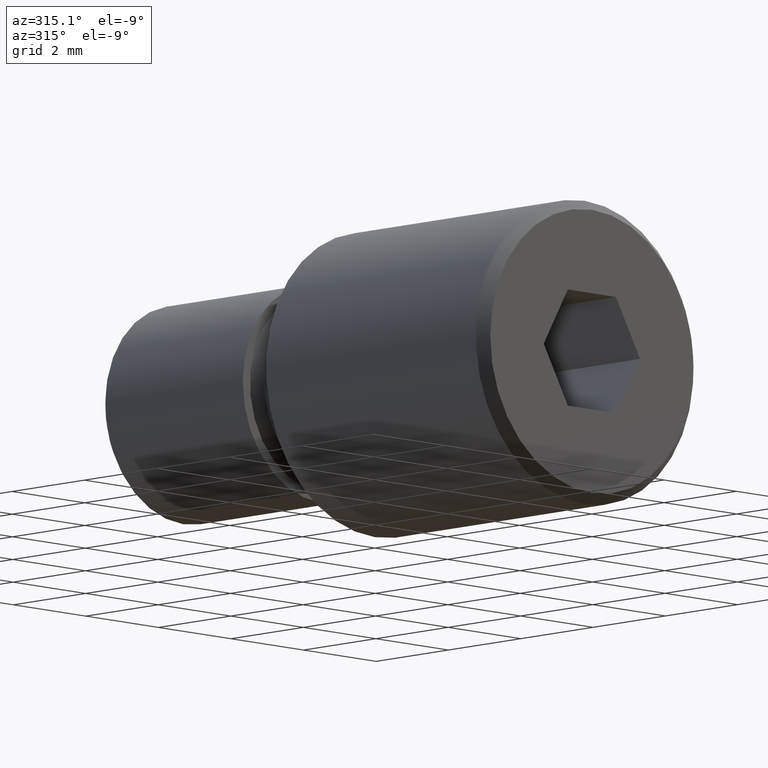
[diagram: clean part render]
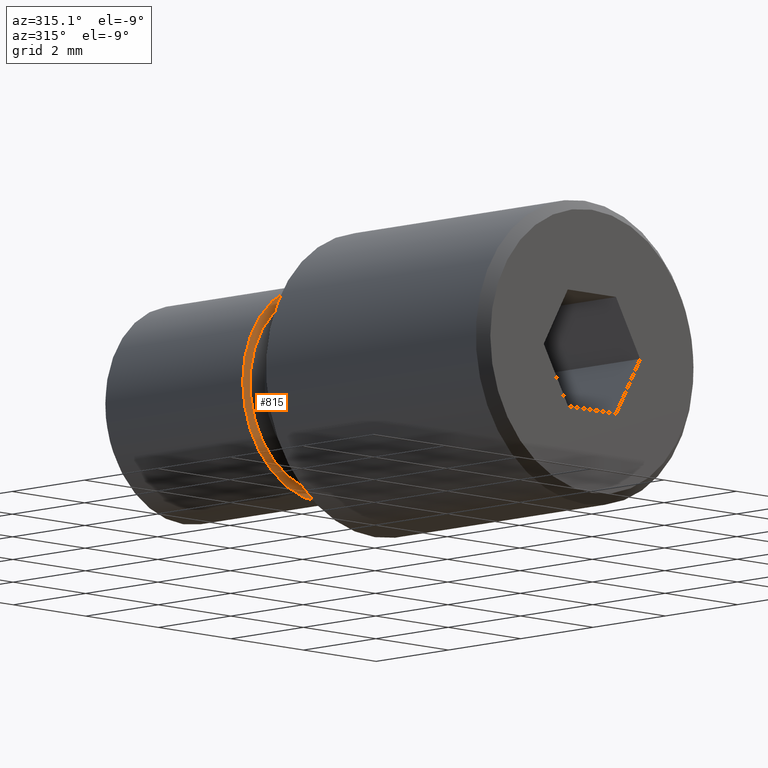
[diagram: same view with one face highlighted and labeled with its STEP entity id]
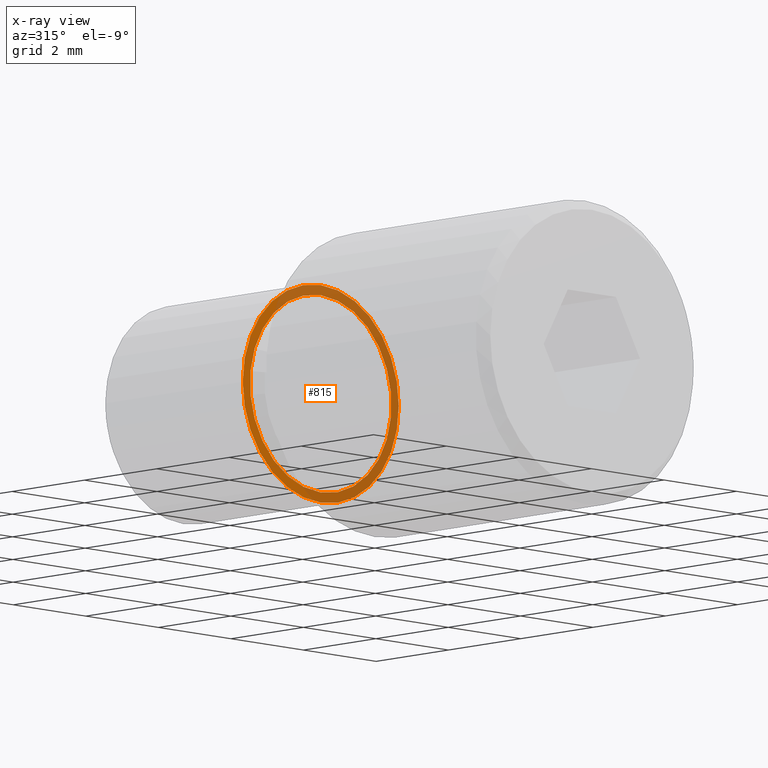
[diagram: x-ray of the same camera — body ghosted, the highlighted face saturated]
A machine part, auxiliary view. The second image highlights one B-rep face of the part: STEP entity #815.
The next image is the same camera in x-ray: the body ghosted, the highlighted face saturated — about 63% of this face is hidden behind the body in this view.
In plain terms, the highlighted planar face has unit normal (0, 1, 0).
Its self-contained STEP definition (entity closure, byte-faithful):
#14 = VERTEX_POINT ( 'NONE', #685 ) ;
#71 = CIRCLE ( 'NONE', #387, 1.950000000000000400 ) ;
#96 = ORIENTED_EDGE ( 'NONE', *, *, #297, .F. ) ;
#126 = DIRECTION ( 'NONE',  ( 0.0000000000000000000, 0.0000000000000000000, 1.000000000000000000 ) ) ;
#130 = CARTESIAN_POINT ( 'NONE',  ( 0.0000000000000000000, 7.500000000000000000, 0.0000000000000000000 ) ) ;
#134 = AXIS2_PLACEMENT_3D ( 'NONE', #635, #933, #351 ) ;
#135 = ORIENTED_EDGE ( 'NONE', *, *, #254, .T. ) ;
#142 = CARTESIAN_POINT ( 'NONE',  ( 2.388061258337339100E-016, 7.500000000000000000, -1.950000000000000400 ) ) ;
#173 = CARTESIAN_POINT ( 'NONE',  ( 0.0000000000000000000, 7.500000000000000000, 1.950000000000000400 ) ) ;
#254 = EDGE_CURVE ( 'NONE', #669, #862, #71, .T. ) ;
#276 = CARTESIAN_POINT ( 'NONE',  ( 0.0000000000000000000, 7.500000000000000000, 0.0000000000000000000 ) ) ;
#280 = DIRECTION ( 'NONE',  ( 0.0000000000000000000, 0.0000000000000000000, 1.000000000000000000 ) ) ;
#284 = DIRECTION ( 'NONE',  ( 0.0000000000000000000, 1.000000000000000000, 0.0000000000000000000 ) ) ;
#290 = CARTESIAN_POINT ( 'NONE',  ( 0.0000000000000000000, 7.500000000000000000, 0.0000000000000000000 ) ) ;
#297 = EDGE_CURVE ( 'NONE', #14, #851, #684, .T. ) ;
#305 = EDGE_CURVE ( 'NONE', #851, #14, #774, .T. ) ;
#351 = DIRECTION ( 'NONE',  ( 0.0000000000000000000, 0.0000000000000000000, 1.000000000000000000 ) ) ;
#354 = EDGE_CURVE ( 'NONE', #862, #669, #654, .T. ) ;
#359 = DIRECTION ( 'NONE',  ( 0.0000000000000000000, 0.0000000000000000000, 1.000000000000000000 ) ) ;
#368 = DIRECTION ( 'NONE',  ( 0.0000000000000000000, 1.000000000000000000, 0.0000000000000000000 ) ) ;
#387 = AXIS2_PLACEMENT_3D ( 'NONE', #489, #417, #126 ) ;
#417 = DIRECTION ( 'NONE',  ( 0.0000000000000000000, 1.000000000000000000, 0.0000000000000000000 ) ) ;
#425 = DIRECTION ( 'NONE',  ( 0.0000000000000000000, 1.000000000000000000, 0.0000000000000000000 ) ) ;
#430 = AXIS2_PLACEMENT_3D ( 'NONE', #130, #284, #717 ) ;
#433 = FACE_OUTER_BOUND ( 'NONE', #806, .T. ) ;
#441 = AXIS2_PLACEMENT_3D ( 'NONE', #276, #425, #280 ) ;
#450 = ORIENTED_EDGE ( 'NONE', *, *, #354, .T. ) ;
#468 = ORIENTED_EDGE ( 'NONE', *, *, #305, .F. ) ;
#489 = CARTESIAN_POINT ( 'NONE',  ( 0.0000000000000000000, 7.500000000000000000, 0.0000000000000000000 ) ) ;
#569 = CARTESIAN_POINT ( 'NONE',  ( 2.632990618166809200E-016, 7.500000000000000000, 2.149999999999999900 ) ) ;
#635 = CARTESIAN_POINT ( 'NONE',  ( 0.0000000000000000000, 7.500000000000000000, 0.0000000000000000000 ) ) ;
#647 = PLANE ( 'NONE',  #430 ) ;
#654 = CIRCLE ( 'NONE', #843, 1.950000000000000400 ) ;
#669 = VERTEX_POINT ( 'NONE', #173 ) ;
#684 = CIRCLE ( 'NONE', #441, 2.149999999999999900 ) ;
#685 = CARTESIAN_POINT ( 'NONE',  ( 0.0000000000000000000, 7.500000000000000000, -2.149999999999999900 ) ) ;
#717 = DIRECTION ( 'NONE',  ( 0.0000000000000000000, -0.0000000000000000000, 1.000000000000000000 ) ) ;
#774 = CIRCLE ( 'NONE', #134, 2.149999999999999900 ) ;
#806 = EDGE_LOOP ( 'NONE', ( #96, #468 ) ) ;
#815 = ADVANCED_FACE ( 'NONE', ( #898, #433 ), #647, .F. ) ;
#843 = AXIS2_PLACEMENT_3D ( 'NONE', #290, #368, #359 ) ;
#851 = VERTEX_POINT ( 'NONE', #569 ) ;
#862 = VERTEX_POINT ( 'NONE', #142 ) ;
#898 = FACE_BOUND ( 'NONE', #929, .T. ) ;
#929 = EDGE_LOOP ( 'NONE', ( #135, #450 ) ) ;
#933 = DIRECTION ( 'NONE',  ( 0.0000000000000000000, 1.000000000000000000, 0.0000000000000000000 ) ) ;